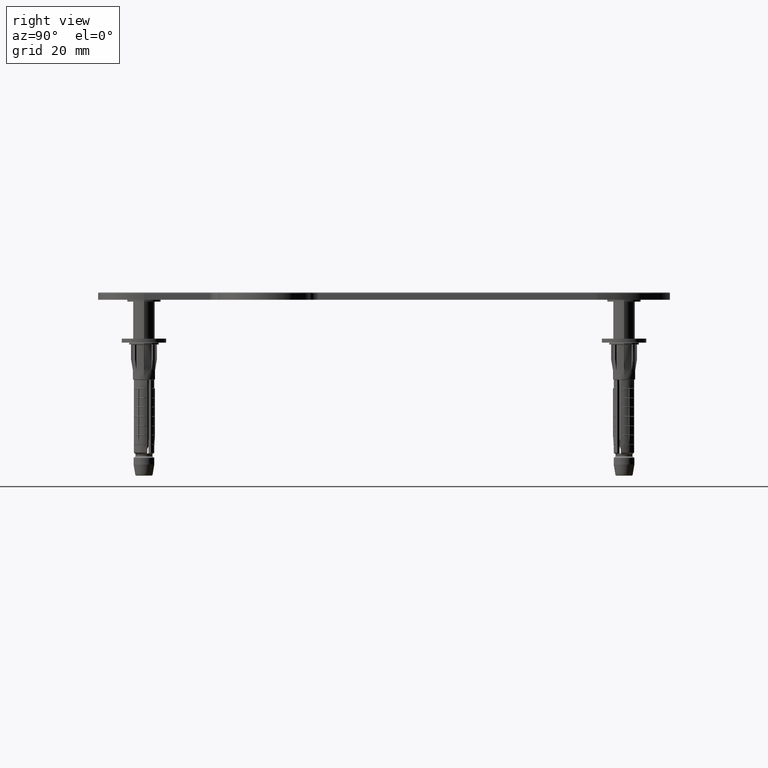
[diagram: clean part render]
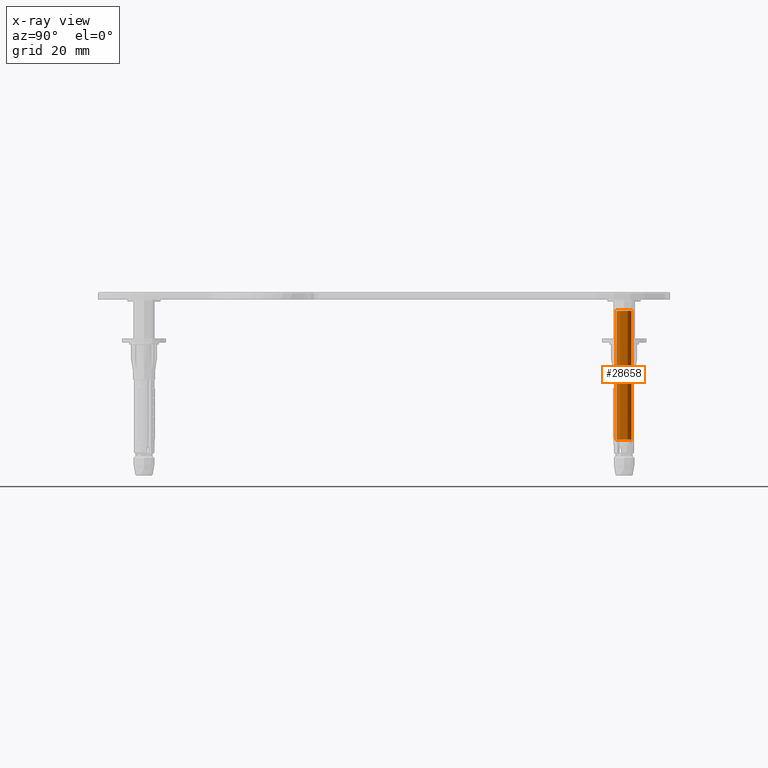
[diagram: x-ray — body ghosted, one internal face saturated and labeled with its STEP entity id]
A machine part, right view, then the same camera in x-ray: the body is ghosted and one INTERNAL B-rep face — a face not visible from any outside direction — is saturated and labeled: STEP entity #28658.
In plain terms, the highlighted cylindrical surface (edge-blend (fillet) strip) has radius 2 mm, axis along (0, 0, -1).
Its self-contained STEP definition (entity closure, byte-faithful):
#631 = CARTESIAN_POINT ( 'NONE',  ( 2.449293598294702963E-16, -1.999999999999981792, -35.40999999999990422 ) ) ;
#720 = DIRECTION ( 'NONE',  ( 1.314919014442269209E-41, 1.000000000000000000, 0.000000000000000000 ) ) ;
#816 = AXIS2_PLACEMENT_3D ( 'NONE', #6879, #22116, #3940 ) ;
#1710 = LINE ( 'NONE', #21506, #10272 ) ;
#2983 = DIRECTION ( 'NONE',  ( -2.548694494986879549E-32, -1.530808498934207841E-17, -1.000000000000000000 ) ) ;
#3059 = VERTEX_POINT ( 'NONE', #37973 ) ;
#3126 = CARTESIAN_POINT ( 'NONE',  ( 2.449293598294697047E-16, -1.999999999999981792, -39.99999999999988631 ) ) ;
#3814 = VECTOR ( 'NONE', #32793, 1000.000000000000000 ) ;
#3940 = DIRECTION ( 'NONE',  ( 1.314919014442269209E-41, 1.000000000000000000, 0.000000000000000000 ) ) ;
#4364 = VERTEX_POINT ( 'NONE', #26776 ) ;
#4611 = EDGE_LOOP ( 'NONE', ( #5877, #30143, #12881, #20261 ) ) ;
#4847 = AXIS2_PLACEMENT_3D ( 'NONE', #25777, #28806, #31868 ) ;
#5877 = ORIENTED_EDGE ( 'NONE', *, *, #34654, .F. ) ;
#6879 = CARTESIAN_POINT ( 'NONE',  ( 0.000000000000000000, 1.387778780781445676E-14, -39.99999999999988631 ) ) ;
#10272 = VECTOR ( 'NONE', #2983, 1000.000000000000000 ) ;
#12049 = VERTEX_POINT ( 'NONE', #13487 ) ;
#12537 = CARTESIAN_POINT ( 'NONE',  ( 0.000000000000000000, 1.387778780781445676E-14, -35.40999999999990422 ) ) ;
#12881 = ORIENTED_EDGE ( 'NONE', *, *, #21309, .T. ) ;
#13487 = CARTESIAN_POINT ( 'NONE',  ( 5.618597014461522366E-31, 1.999999999999995781, -0.5000000000000073275 ) ) ;
#13489 = FACE_OUTER_BOUND ( 'NONE', #4611, .T. ) ;
#20261 = ORIENTED_EDGE ( 'NONE', *, *, #33087, .F. ) ;
#21309 = EDGE_CURVE ( 'NONE', #12049, #3059, #1710, .T. ) ;
#21477 = AXIS2_PLACEMENT_3D ( 'NONE', #12537, #36587, #720 ) ;
#21506 = CARTESIAN_POINT ( 'NONE',  ( 2.629838028884532811E-41, 2.000000000000009770, -39.99999999999988631 ) ) ;
#22116 = DIRECTION ( 'NONE',  ( -2.548694494986879549E-32, -1.530808498934207841E-17, -1.000000000000000000 ) ) ;
#23677 = CIRCLE ( 'NONE', #21477, 1.999999999999995781 ) ;
#25777 = CARTESIAN_POINT ( 'NONE',  ( 0.000000000000000000, 0.000000000000000000, -0.5000000000000073275 ) ) ;
#26776 = CARTESIAN_POINT ( 'NONE',  ( 2.449293598294719726E-16, -1.999999999999995781, -0.5000000000000073275 ) ) ;
#28112 = CYLINDRICAL_SURFACE ( 'NONE', #816, 1.999999999999995781 ) ;
#28658 = ADVANCED_FACE ( 'NONE', ( #13489 ), #28112, .T. ) ;
#28806 = DIRECTION ( 'NONE',  ( -2.548694494986879549E-32, -1.530808498934202910E-17, -1.000000000000000000 ) ) ;
#28977 = LINE ( 'NONE', #3126, #3814 ) ;
#30143 = ORIENTED_EDGE ( 'NONE', *, *, #36945, .T. ) ;
#31868 = DIRECTION ( 'NONE',  ( -1.314919014442268700E-41, -1.000000000000000000, 0.000000000000000000 ) ) ;
#32351 = CIRCLE ( 'NONE', #4847, 1.999999999999995781 ) ;
#32793 = DIRECTION ( 'NONE',  ( -2.548694494986879549E-32, -1.530808498934207841E-17, -1.000000000000000000 ) ) ;
#33087 = EDGE_CURVE ( 'NONE', #35953, #3059, #23677, .T. ) ;
#34654 = EDGE_CURVE ( 'NONE', #4364, #35953, #28977, .T. ) ;
#35953 = VERTEX_POINT ( 'NONE', #631 ) ;
#36587 = DIRECTION ( 'NONE',  ( -2.548694494986879549E-32, -1.530808498934207841E-17, -1.000000000000000000 ) ) ;
#36945 = EDGE_CURVE ( 'NONE', #4364, #12049, #32351, .T. ) ;
#37973 = CARTESIAN_POINT ( 'NONE',  ( 2.629838028884532811E-41, 2.000000000000009770, -35.40999999999990422 ) ) ;